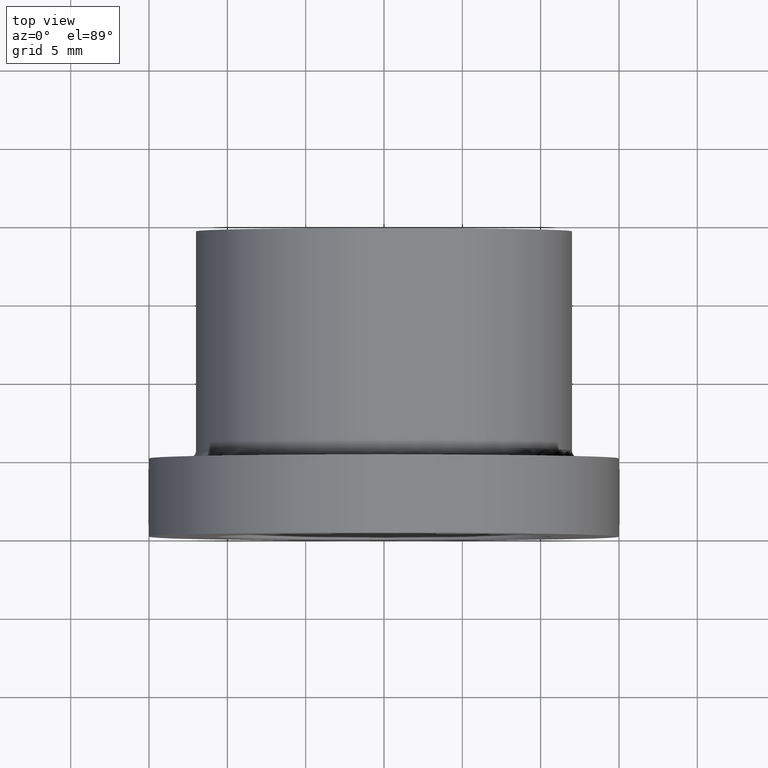
[diagram: clean part render]
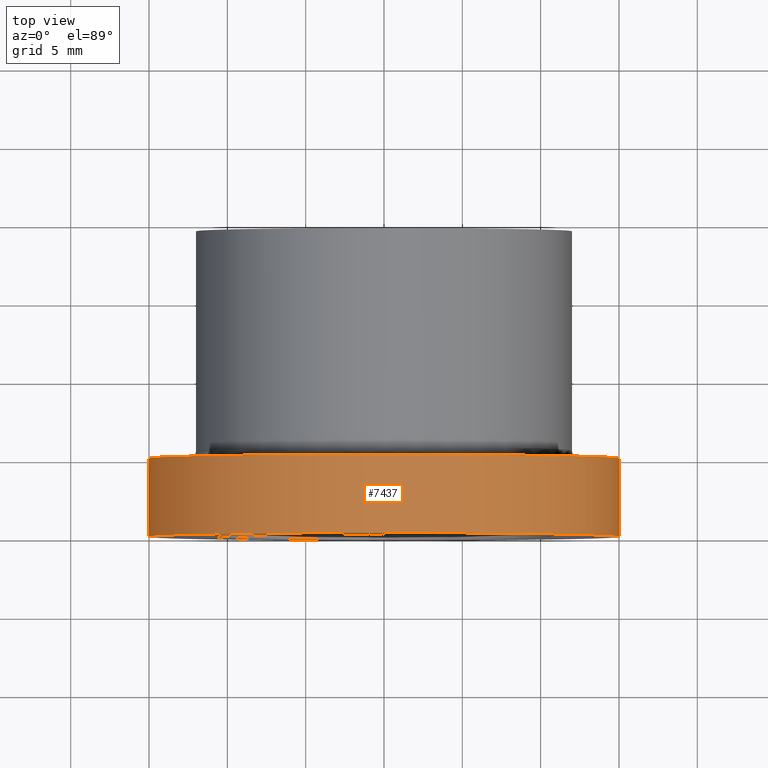
[diagram: same view with one face highlighted and labeled with its STEP entity id]
A machine part, top view. The second image highlights one B-rep face of the part: STEP entity #7437.
In plain terms, the highlighted cylindrical surface (partial cylindrical patch) has radius 15 mm, axis along (-0, 1, -0).
Its self-contained STEP definition (entity closure, byte-faithful):
#75 = CARTESIAN_POINT ( 'NONE',  ( 0.0000000000000000000, 0.0000000000000000000, 0.0000000000000000000 ) ) ;
#121 = DIRECTION ( 'NONE',  ( -3.140119997813727100E-017, 1.000000000000000000, -0.0000000000000000000 ) ) ;
#335 = CARTESIAN_POINT ( 'NONE',  ( -15.00000000000000000, 19.50000000000000000, 0.0000000000000000000 ) ) ;
#1237 = FACE_OUTER_BOUND ( 'NONE', #8029, .T. ) ;
#1491 = LINE ( 'NONE', #335, #9884 ) ;
#1558 = CIRCLE ( 'NONE', #6802, 15.00000000000000000 ) ;
#1826 = VERTEX_POINT ( 'NONE', #7649 ) ;
#2021 = DIRECTION ( 'NONE',  ( -3.140119997813727100E-017, 1.000000000000000000, -0.0000000000000000000 ) ) ;
#2464 = CARTESIAN_POINT ( 'NONE',  ( -1.570059998906864000E-016, 5.000000000000000900, 0.0000000000000000000 ) ) ;
#3629 = ORIENTED_EDGE ( 'NONE', *, *, #7988, .F. ) ;
#3820 = CIRCLE ( 'NONE', #6310, 15.00000000000000000 ) ;
#3851 = LINE ( 'NONE', #4199, #5257 ) ;
#3879 = DIRECTION ( 'NONE',  ( -1.000000000000000000, 0.0000000000000000000, 0.0000000000000000000 ) ) ;
#4067 = VERTEX_POINT ( 'NONE', #10196 ) ;
#4199 = CARTESIAN_POINT ( 'NONE',  ( 15.00000000000000000, 19.50000000000000000, 1.836970198721029600E-015 ) ) ;
#4970 = DIRECTION ( 'NONE',  ( -3.140119997813727100E-017, 1.000000000000000000, -0.0000000000000000000 ) ) ;
#5021 = ORIENTED_EDGE ( 'NONE', *, *, #12690, .T. ) ;
#5257 = VECTOR ( 'NONE', #2021, 1000.000000000000000 ) ;
#5387 = DIRECTION ( 'NONE',  ( -3.140119997813727100E-017, 1.000000000000000000, -0.0000000000000000000 ) ) ;
#6228 = EDGE_CURVE ( 'NONE', #4067, #9799, #1491, .T. ) ;
#6310 = AXIS2_PLACEMENT_3D ( 'NONE', #75, #121, #8084 ) ;
#6802 = AXIS2_PLACEMENT_3D ( 'NONE', #2464, #5387, #11212 ) ;
#7437 = ADVANCED_FACE ( 'NONE', ( #1237 ), #12945, .T. ) ;
#7649 = CARTESIAN_POINT ( 'NONE',  ( 15.00000000000000000, 4.710179996720590600E-016, 1.836970198721029600E-015 ) ) ;
#7988 = EDGE_CURVE ( 'NONE', #9799, #12854, #1558, .T. ) ;
#8029 = EDGE_LOOP ( 'NONE', ( #5021, #12113, #3629, #9553 ) ) ;
#8084 = DIRECTION ( 'NONE',  ( -1.000000000000000000, -3.140119997813727100E-017, 0.0000000000000000000 ) ) ;
#9200 = AXIS2_PLACEMENT_3D ( 'NONE', #10847, #4970, #3879 ) ;
#9213 = EDGE_CURVE ( 'NONE', #1826, #12854, #3851, .T. ) ;
#9553 = ORIENTED_EDGE ( 'NONE', *, *, #6228, .F. ) ;
#9799 = VERTEX_POINT ( 'NONE', #10023 ) ;
#9884 = VECTOR ( 'NONE', #11302, 1000.000000000000000 ) ;
#10023 = CARTESIAN_POINT ( 'NONE',  ( -15.00000000000000000, 5.000000000000000000, 0.0000000000000000000 ) ) ;
#10196 = CARTESIAN_POINT ( 'NONE',  ( -15.00000000000000000, -4.710179996720590600E-016, 0.0000000000000000000 ) ) ;
#10847 = CARTESIAN_POINT ( 'NONE',  ( -6.123233995736768300E-016, 19.50000000000000000, 0.0000000000000000000 ) ) ;
#11212 = DIRECTION ( 'NONE',  ( -1.000000000000000000, -5.782411586589357400E-017, 0.0000000000000000000 ) ) ;
#11302 = DIRECTION ( 'NONE',  ( -3.140119997813727100E-017, 1.000000000000000000, -0.0000000000000000000 ) ) ;
#11543 = CARTESIAN_POINT ( 'NONE',  ( 15.00000000000000000, 5.000000000000001800, 1.836970198721029600E-015 ) ) ;
#12113 = ORIENTED_EDGE ( 'NONE', *, *, #9213, .T. ) ;
#12690 = EDGE_CURVE ( 'NONE', #4067, #1826, #3820, .T. ) ;
#12854 = VERTEX_POINT ( 'NONE', #11543 ) ;
#12945 = CYLINDRICAL_SURFACE ( 'NONE', #9200, 15.00000000000000000 ) ;